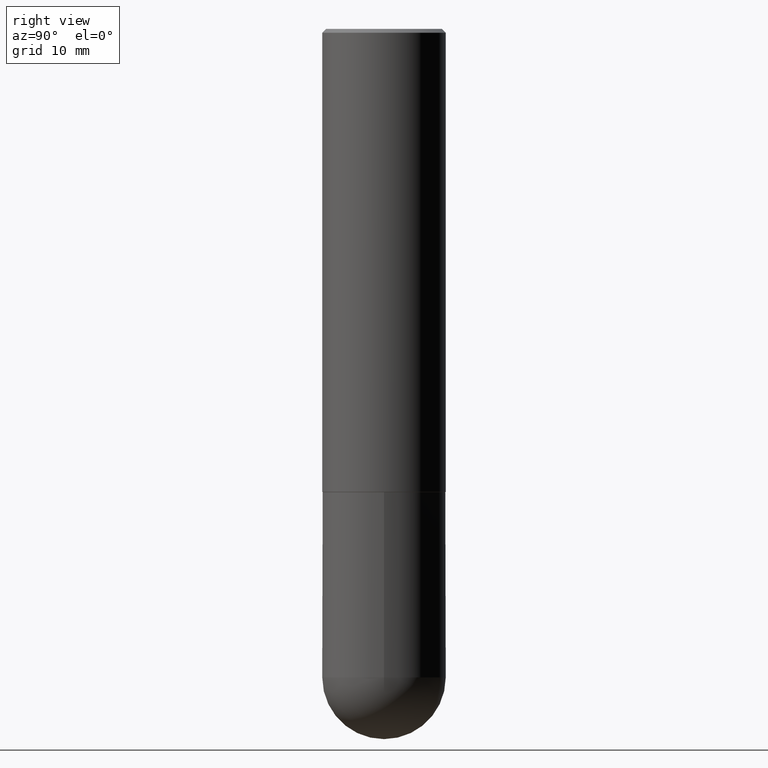
[diagram: clean part render]
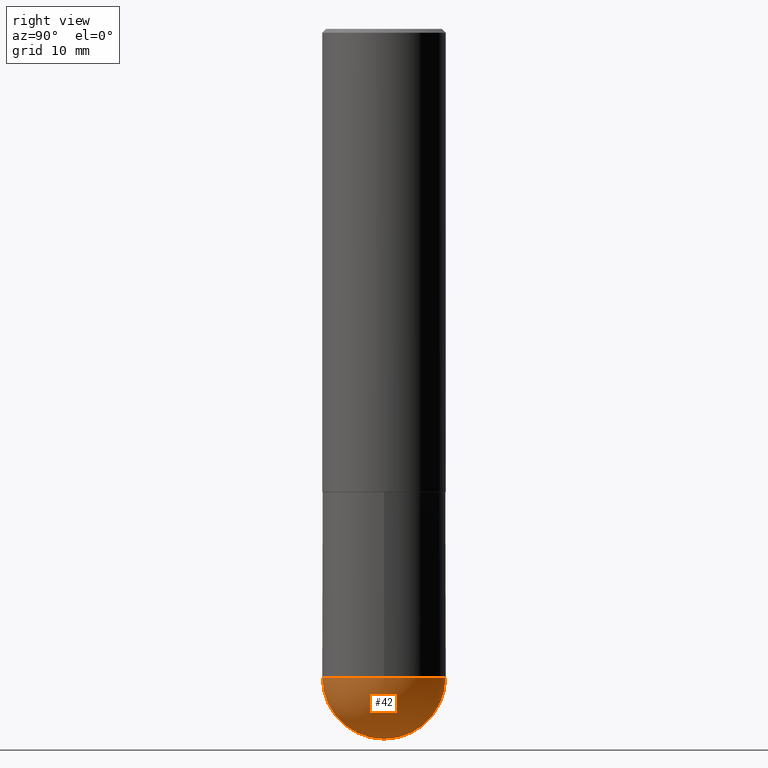
[diagram: same view with one face highlighted and labeled with its STEP entity id]
A machine part, right view. The second image highlights one B-rep face of the part: STEP entity #42.
In plain terms, the highlighted spherical surface has radius 7.9997 mm.
Its self-contained STEP definition (entity closure, byte-faithful):
#2 = CARTESIAN_POINT ( 'NONE',  ( 8.539834969227531055E-29, -1.310104265196035002E-14, -3.621999999999999886 ) ) ;
#4 = CARTESIAN_POINT ( 'NONE',  ( 8.087287615494557476E-29, -1.154650336162122627E-14, -3.307050000000000267 ) ) ;
#5 = VERTEX_POINT ( 'NONE', #86 ) ;
#8 = DIRECTION ( 'NONE',  ( 1.000000000000000000, -6.982962677686269866E-15, 0.000000000000000000 ) ) ;
#16 = CIRCLE ( 'NONE', #145, 0.3149500000000000077 ) ;
#21 = CARTESIAN_POINT ( 'NONE',  ( 7.756167837580670108E-29, -1.202068572976127498E-14, -3.307049999999999823 ) ) ;
#26 = DIRECTION ( 'NONE',  ( -7.105427357600999492E-15, -1.000000000000000000, 0.000000000000000000 ) ) ;
#42 = ADVANCED_FACE ( 'NONE', ( #141 ), #306, .T. ) ;
#46 = EDGE_LOOP ( 'NONE', ( #130, #301, #308, #105 ) ) ;
#48 = DIRECTION ( 'NONE',  ( 6.982962677686264344E-15, 1.000000000000000000, 0.000000000000000000 ) ) ;
#51 = CIRCLE ( 'NONE', #275, 0.3149500000000000077 ) ;
#57 = VERTEX_POINT ( 'NONE', #125 ) ;
#73 = VERTEX_POINT ( 'NONE', #286 ) ;
#84 = DIRECTION ( 'NONE',  ( -1.000000000000000000, 6.982962677686265133E-15, -4.883557194083112901E-29 ) ) ;
#86 = CARTESIAN_POINT ( 'NONE',  ( -2.237854346276355915E-15, -0.3149500000000118871, -3.307049999999999379 ) ) ;
#96 = CARTESIAN_POINT ( 'NONE',  ( 7.756167837580670108E-29, -1.202068572976127498E-14, -3.307049999999999823 ) ) ;
#101 = CARTESIAN_POINT ( 'NONE',  ( 8.087287615494557476E-29, -1.154650336162122627E-14, -3.307050000000000267 ) ) ;
#105 = ORIENTED_EDGE ( 'NONE', *, *, #400, .F. ) ;
#125 = CARTESIAN_POINT ( 'NONE',  ( 2.199284095337369546E-15, 0.3149499999999882394, -3.307050000000001599 ) ) ;
#130 = ORIENTED_EDGE ( 'NONE', *, *, #270, .F. ) ;
#141 = FACE_OUTER_BOUND ( 'NONE', #46, .T. ) ;
#145 = AXIS2_PLACEMENT_3D ( 'NONE', #101, #323, #8 ) ;
#162 = AXIS2_PLACEMENT_3D ( 'NONE', #96, #341, #26 ) ;
#208 = DIRECTION ( 'NONE',  ( 6.982962677686265133E-15, 1.000000000000000000, -3.469564049740291586E-15 ) ) ;
#226 = AXIS2_PLACEMENT_3D ( 'NONE', #360, #329, #48 ) ;
#229 = EDGE_CURVE ( 'NONE', #73, #57, #16, .T. ) ;
#259 = EDGE_CURVE ( 'NONE', #274, #57, #397, .T. ) ;
#270 = EDGE_CURVE ( 'NONE', #274, #5, #298, .T. ) ;
#274 = VERTEX_POINT ( 'NONE', #2 ) ;
#275 = AXIS2_PLACEMENT_3D ( 'NONE', #4, #388, #277 ) ;
#277 = DIRECTION ( 'NONE',  ( 1.000000000000000000, -6.982962677686269866E-15, 0.000000000000000000 ) ) ;
#286 = CARTESIAN_POINT ( 'NONE',  ( 0.3149500000000000077, -1.209632438545554361E-14, -3.307050000000000267 ) ) ;
#298 = CIRCLE ( 'NONE', #162, 0.3149500000000001743 ) ;
#301 = ORIENTED_EDGE ( 'NONE', *, *, #259, .T. ) ;
#306 = SPHERICAL_SURFACE ( 'NONE', #401, 0.3149500000000001743 ) ;
#308 = ORIENTED_EDGE ( 'NONE', *, *, #229, .F. ) ;
#323 = DIRECTION ( 'NONE',  ( -2.445468806185136597E-29, 3.491481338843145583E-15, 1.000000000000000000 ) ) ;
#329 = DIRECTION ( 'NONE',  ( 1.000000000000000000, -6.982962677686265922E-15, 4.883557194083112340E-29 ) ) ;
#341 = DIRECTION ( 'NONE',  ( -1.000000000000000000, 7.105427357601001070E-15, -4.926315508542082329E-29 ) ) ;
#360 = CARTESIAN_POINT ( 'NONE',  ( 7.756167837580670108E-29, -1.202068572976127498E-14, -3.307049999999999823 ) ) ;
#388 = DIRECTION ( 'NONE',  ( -2.445468806185136597E-29, 3.491481338843145583E-15, 1.000000000000000000 ) ) ;
#397 = CIRCLE ( 'NONE', #226, 0.3149500000000001743 ) ;
#400 = EDGE_CURVE ( 'NONE', #5, #73, #51, .T. ) ;
#401 = AXIS2_PLACEMENT_3D ( 'NONE', #21, #84, #208 ) ;